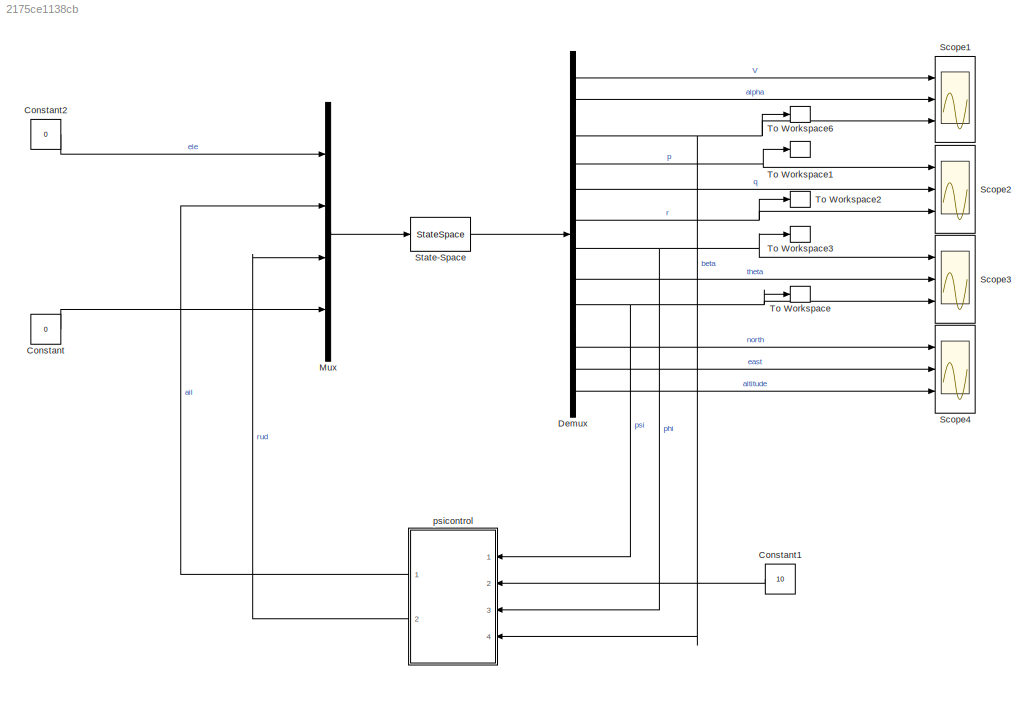
MODEL slx_2175ce1138cb
KIND model
CONFIG AbsTol = auto
CONFIG FixedStep = auto
CONFIG MaxStep = auto
CONFIG MinStep = auto
CONFIG RelTol = 1e-3
CONFIG SampleTimeConstraint = Unconstrained
CONFIG Solver = VariableStepAuto
CONFIG SolverMode = Auto
CONFIG SolverName = VariableStepAuto
CONFIG StartTime = 0.0
CONFIG StopTime = 100
BLOCK [Constant] Constant
  Value = 0
BLOCK [Constant] Constant1
  Value = 10
BLOCK [Constant] Constant2
  Value = 0
BLOCK [Demux] Demux
  DisplayOption = bar
  Outputs = 12
  Ports = [1, 12]
BLOCK [Mux] Mux
  DisplayOption = bar
  Ports = [4, 1]
BLOCK [Scope] Scope1
  NumInputPorts = 3
  Ports = [3]
  ScopeSpecificationString = Simulink.scopes.TimeScopeBlockCfg('CurrentConfiguration', extmgr.ConfigurationSet(extmgr.Configuration('Core','General UI',true),extmgr.Configuration('Core','Source UI',true),extmgr.Configuration('Sources','WiredSimulink',true,'DataLoggingVariableName','yy','DataLoggingSaveFormat','Array','DataLoggingDecimation','1','DataLoggingDecimateData',true),extmgr.Configuration('Visuals','Time Domain',true,...<+3054ch>
BLOCK [Scope] Scope2
  NumInputPorts = 3
  Ports = [3]
  ScopeSpecificationString = Simulink.scopes.TimeScopeBlockCfg('CurrentConfiguration', extmgr.ConfigurationSet(extmgr.Configuration('Core','General UI',true),extmgr.Configuration('Core','Source UI',true),extmgr.Configuration('Sources','WiredSimulink',true,'DataLoggingVariableName','ScopeData2','DataLoggingSaveFormat','StructureWithTime','DataLoggingDecimation','1','DataLoggingDecimateData',true),extmgr.Configuration('Visuals'...<+3073ch>
BLOCK [Scope] Scope3
  NumInputPorts = 3
  Ports = [3]
  ScopeSpecificationString = Simulink.scopes.TimeScopeBlockCfg('CurrentConfiguration', extmgr.ConfigurationSet(extmgr.Configuration('Core','General UI',true),extmgr.Configuration('Core','Source UI',true),extmgr.Configuration('Sources','WiredSimulink',true,'DataLoggingSaveFormat','StructureWithTime','DataLoggingDecimation','1','DataLoggingDecimateData',true),extmgr.Configuration('Visuals','Time Domain',true,'SerializedDisplays...<+3092ch>
BLOCK [Scope] Scope4
  NumInputPorts = 3
  Ports = [3]
  ScopeSpecificationString = Simulink.scopes.TimeScopeBlockCfg('CurrentConfiguration', extmgr.ConfigurationSet(extmgr.Configuration('Core','General UI',true),extmgr.Configuration('Core','Source UI',true),extmgr.Configuration('Sources','WiredSimulink',true,'DataLoggingVariableName','ScopeData1','DataLoggingSaveFormat','StructureWithTime','DataLoggingDecimation','1','DataLoggingDecimateData',true),extmgr.Configuration('Visuals'...<+3101ch>
BLOCK [StateSpace] State-Space
  A = A
  B = B
  C = C
  D = D
  Ports = [1, 1]
  X0 = [0 0 0 0 0 0 0 0 0 0 0 0]
BLOCK [ToWorkspace] To Workspace
  FixptAsFi = on
  MaxDataPoints = inf
  Ports = [1]
  SampleTime = -1
  Save2DSignal = 3-D array (concatenate along third dimension)
  SaveFormat = Timeseries
  VariableName = psi
BLOCK [ToWorkspace] To Workspace1
  FixptAsFi = on
  MaxDataPoints = inf
  Ports = [1]
  SampleTime = -1
  Save2DSignal = 3-D array (concatenate along third dimension)
  SaveFormat = Timeseries
  VariableName = p
BLOCK [ToWorkspace] To Workspace2
  FixptAsFi = on
  MaxDataPoints = inf
  Ports = [1]
  SampleTime = -1
  Save2DSignal = 3-D array (concatenate along third dimension)
  SaveFormat = Timeseries
  VariableName = r
BLOCK [ToWorkspace] To Workspace3
  FixptAsFi = on
  MaxDataPoints = inf
  Ports = [1]
  SampleTime = -1
  Save2DSignal = 3-D array (concatenate along third dimension)
  SaveFormat = Timeseries
  VariableName = phi
BLOCK [ToWorkspace] To Workspace6
  FixptAsFi = on
  MaxDataPoints = inf
  Ports = [1]
  SampleTime = -1
  Save2DSignal = 3-D array (concatenate along third dimension)
  SaveFormat = Timeseries
  VariableName = beta
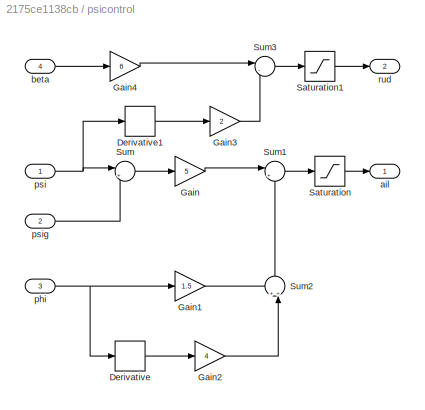
BLOCK [SubSystem] psicontrol
  Ports = [4, 2]
  RequestExecContextInheritance = off
  Variant = off
BLOCK [Derivative] psicontrol/Derivative
BLOCK [Derivative] psicontrol/Derivative1
BLOCK [Gain] psicontrol/Gain
  Gain = 5
  OutDataTypeStr = Inherit: Inherit via internal rule
  ParamDataTypeStr = Inherit: Inherit via internal rule
  SaturateOnIntegerOverflow = off
BLOCK [Gain] psicontrol/Gain1
  Gain = 1.5
  OutDataTypeStr = Inherit: Inherit via internal rule
  ParamDataTypeStr = Inherit: Inherit via internal rule
  SaturateOnIntegerOverflow = off
BLOCK [Gain] psicontrol/Gain2
  Gain = 4
  OutDataTypeStr = Inherit: Inherit via internal rule
  ParamDataTypeStr = Inherit: Inherit via internal rule
  SaturateOnIntegerOverflow = off
BLOCK [Gain] psicontrol/Gain3
  Gain = 2
  OutDataTypeStr = Inherit: Inherit via internal rule
  ParamDataTypeStr = Inherit: Inherit via internal rule
  SaturateOnIntegerOverflow = off
BLOCK [Gain] psicontrol/Gain4
  Gain = 6
  OutDataTypeStr = Inherit: Inherit via internal rule
  ParamDataTypeStr = Inherit: Inherit via internal rule
  SaturateOnIntegerOverflow = off
BLOCK [Saturate] psicontrol/Saturation
  InputPortMap = u0
  LowerLimit = -12
  Ports = [1, 1]
  UpperLimit = 12
BLOCK [Saturate] psicontrol/Saturation1
  InputPortMap = u0
  LowerLimit = -8
  Ports = [1, 1]
  UpperLimit = 8
BLOCK [Sum] psicontrol/Sum
  IconShape = round
  InputSameDT = off
  Inputs = |+-
  OutDataTypeStr = Inherit: Inherit via internal rule
  Ports = [2, 1]
  SaturateOnIntegerOverflow = off
BLOCK [Sum] psicontrol/Sum1
  IconShape = round
  InputSameDT = off
  Inputs = |++
  OutDataTypeStr = Inherit: Inherit via internal rule
  Ports = [2, 1]
  SaturateOnIntegerOverflow = off
BLOCK [Sum] psicontrol/Sum2
  IconShape = round
  InputSameDT = off
  Inputs = ++|
  OutDataTypeStr = Inherit: Inherit via internal rule
  Ports = [2, 1]
  SaturateOnIntegerOverflow = off
BLOCK [Sum] psicontrol/Sum3
  IconShape = round
  InputSameDT = off
  Inputs = |-+
  OutDataTypeStr = Inherit: Inherit via internal rule
  Ports = [2, 1]
  SaturateOnIntegerOverflow = off
BLOCK [Outport] psicontrol/ail
  IconDisplay = Port number
BLOCK [Inport] psicontrol/beta
  IconDisplay = Port number
  Port = 4
BLOCK [Inport] psicontrol/phi
  IconDisplay = Port number
  Port = 3
BLOCK [Inport] psicontrol/psi
  IconDisplay = Port number
BLOCK [Inport] psicontrol/psig
  IconDisplay = Port number
  Port = 2
BLOCK [Outport] psicontrol/rud
  IconDisplay = Port number
  Port = 2
LINE Constant1:1 -> psicontrol:2
LINE Constant2:1 -> Mux:1
LINE Constant:1 -> Mux:4
LINE Demux:1 -> Scope1:1
LINE Demux:10 -> Scope4:1
LINE Demux:11 -> Scope4:2
LINE Demux:12 -> Scope4:3
LINE Demux:2 -> Scope1:2
NET Demux:3 -> Scope1:3, To Workspace6:1, psicontrol:4
NET Demux:4 -> Scope2:1, To Workspace1:1
LINE Demux:5 -> Scope2:2
NET Demux:6 -> Scope2:3, To Workspace2:1
NET Demux:7 -> Scope3:1, To Workspace3:1, psicontrol:3
LINE Demux:8 -> Scope3:2
NET Demux:9 -> Scope3:3, To Workspace:1, psicontrol:1
LINE Mux:1 -> State-Space:1
LINE State-Space:1 -> Demux:1
LINE psicontrol/Derivative1:1 -> psicontrol/Gain3:1
LINE psicontrol/Derivative:1 -> psicontrol/Gain2:1
LINE psicontrol/Gain1:1 -> psicontrol/Sum2:1
LINE psicontrol/Gain2:1 -> psicontrol/Sum2:2
LINE psicontrol/Gain3:1 -> psicontrol/Sum3:2
LINE psicontrol/Gain4:1 -> psicontrol/Sum3:1
LINE psicontrol/Gain:1 -> psicontrol/Sum1:1
LINE psicontrol/Saturation1:1 -> psicontrol/rud:1
LINE psicontrol/Saturation:1 -> psicontrol/ail:1
LINE psicontrol/Sum1:1 -> psicontrol/Saturation:1
LINE psicontrol/Sum2:1 -> psicontrol/Sum1:2
LINE psicontrol/Sum3:1 -> psicontrol/Saturation1:1
LINE psicontrol/Sum:1 -> psicontrol/Gain:1
LINE psicontrol/beta:1 -> psicontrol/Gain4:1
NET psicontrol/phi:1 -> psicontrol/Derivative:1, psicontrol/Gain1:1
NET psicontrol/psi:1 -> psicontrol/Derivative1:1, psicontrol/Sum:1
LINE psicontrol/psig:1 -> psicontrol/Sum:2
LINE psicontrol:1 -> Mux:2
LINE psicontrol:2 -> Mux:3
note: NET lines group one-source signal fan-out (src -> all destinations, sorted); 1:1 wires keep LINE
